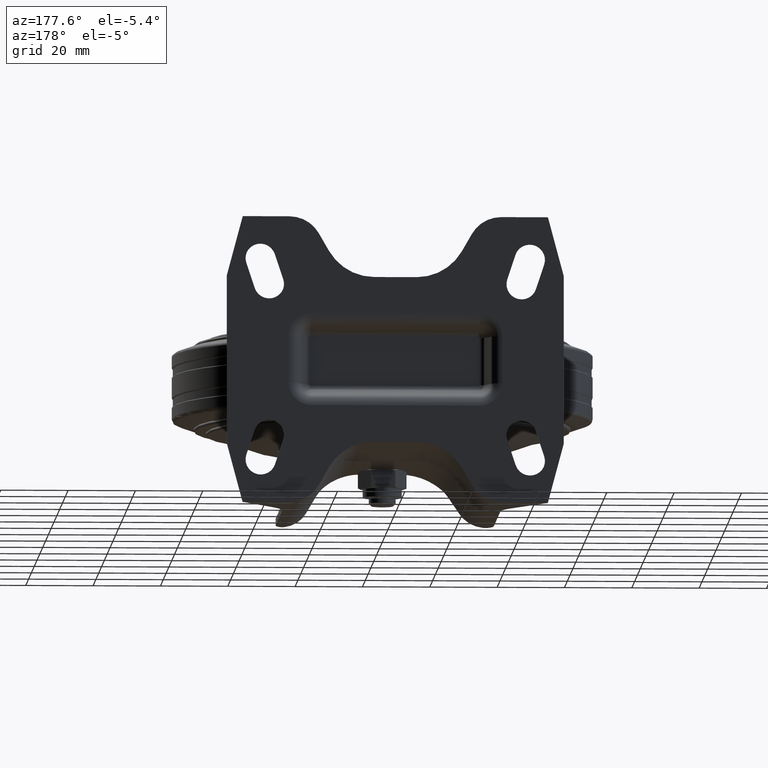
[diagram: clean part render]
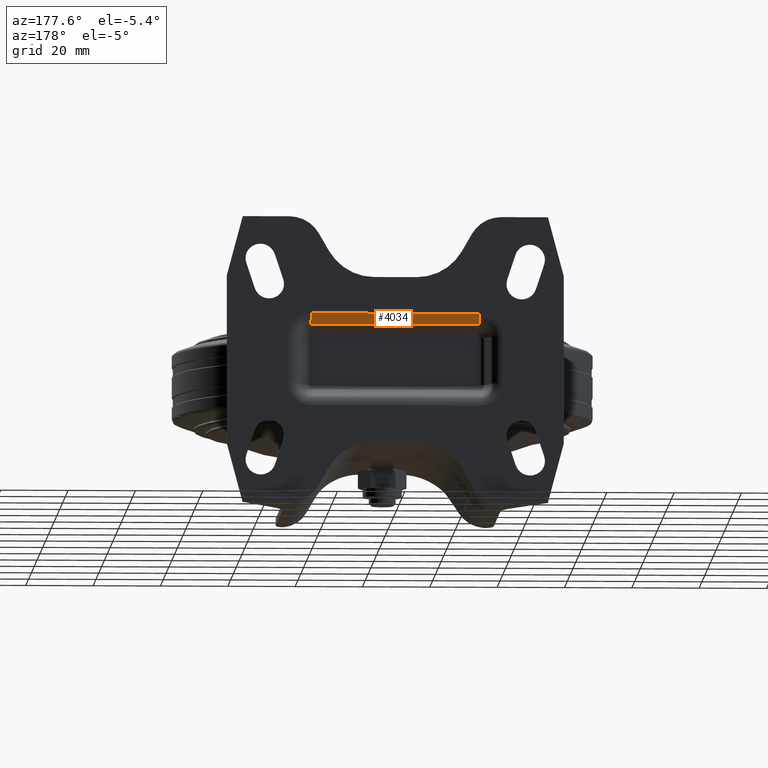
[diagram: same view with one face highlighted and labeled with its STEP entity id]
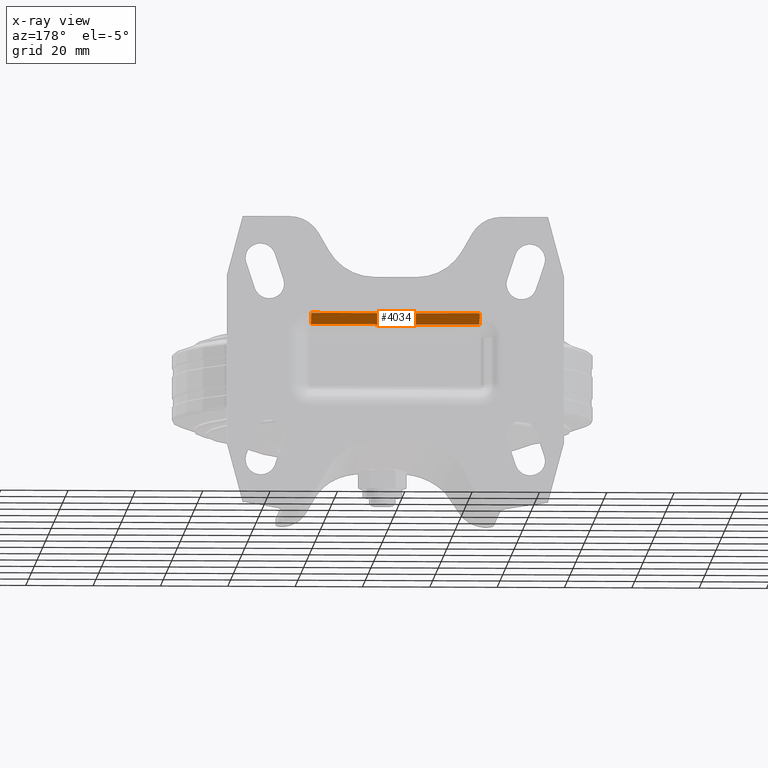
[diagram: x-ray of the same camera — body ghosted, the highlighted face saturated]
A machine part, auxiliary view. The second image highlights one B-rep face of the part: STEP entity #4034.
The next image is the same camera in x-ray: the body ghosted, the highlighted face saturated — about 0% of this face is hidden behind the body in this view.
In plain terms, the highlighted cylindrical surface (edge-blend (fillet) strip) has radius 3.5 mm, axis along (-1, 0, 0).
Its self-contained STEP definition (entity closure, byte-faithful):
#485=LINE('',#7040,#752);
#536=LINE('',#7187,#803);
#752=VECTOR('',#5400,1000.);
#803=VECTOR('',#5593,1000.);
#901=CYLINDRICAL_SURFACE('',#4538,3.5);
#1088=FACE_OUTER_BOUND('',#1351,.T.);
#1351=EDGE_LOOP('',(#3558,#3559,#3560,#3561));
#1546=CIRCLE('',#4539,3.5);
#1547=CIRCLE('',#4540,3.5);
#1970=VERTEX_POINT('',#7037);
#1971=VERTEX_POINT('',#7039);
#1987=VERTEX_POINT('',#7183);
#1988=VERTEX_POINT('',#7185);
#2452=EDGE_CURVE('',#1970,#1971,#485,.T.);
#2519=EDGE_CURVE('',#1987,#1971,#1546,.T.);
#2520=EDGE_CURVE('',#1988,#1970,#1547,.T.);
#2521=EDGE_CURVE('',#1988,#1987,#536,.T.);
#3558=ORIENTED_EDGE('',*,*,#2519,.T.);
#3559=ORIENTED_EDGE('',*,*,#2452,.F.);
#3560=ORIENTED_EDGE('',*,*,#2520,.F.);
#3561=ORIENTED_EDGE('',*,*,#2521,.T.);
#4034=ADVANCED_FACE('',(#1088),#901,.T.);
#4538=AXIS2_PLACEMENT_3D('',#7182,#5587,#5588);
#4539=AXIS2_PLACEMENT_3D('',#7184,#5589,#5590);
#4540=AXIS2_PLACEMENT_3D('',#7186,#5591,#5592);
#5400=DIRECTION('',(-1.,0.,0.));
#5587=DIRECTION('center_axis',(-1.,0.,0.));
#5588=DIRECTION('ref_axis',(0.,0.,1.));
#5589=DIRECTION('center_axis',(1.,0.,0.));
#5590=DIRECTION('ref_axis',(0.,0.,-1.));
#5591=DIRECTION('center_axis',(1.,0.,0.));
#5592=DIRECTION('ref_axis',(0.,0.,-1.));
#5593=DIRECTION('',(-1.,0.,0.));
#7037=CARTESIAN_POINT('',(25.,93.5,13.7297459128262));
#7039=CARTESIAN_POINT('',(-25.,93.5,13.7297459128262));
#7040=CARTESIAN_POINT('',(25.,93.5,13.7297459128262));
#7182=CARTESIAN_POINT('Origin',(25.,90.,13.7297459128262));
#7183=CARTESIAN_POINT('',(-25.,91.4791639160925,10.557668658198));
#7184=CARTESIAN_POINT('Origin',(-25.,90.,13.7297459128262));
#7185=CARTESIAN_POINT('',(25.,91.4791639160925,10.557668658198));
#7186=CARTESIAN_POINT('Origin',(25.,90.,13.7297459128262));
#7187=CARTESIAN_POINT('',(25.,91.4791639160925,10.557668658198));